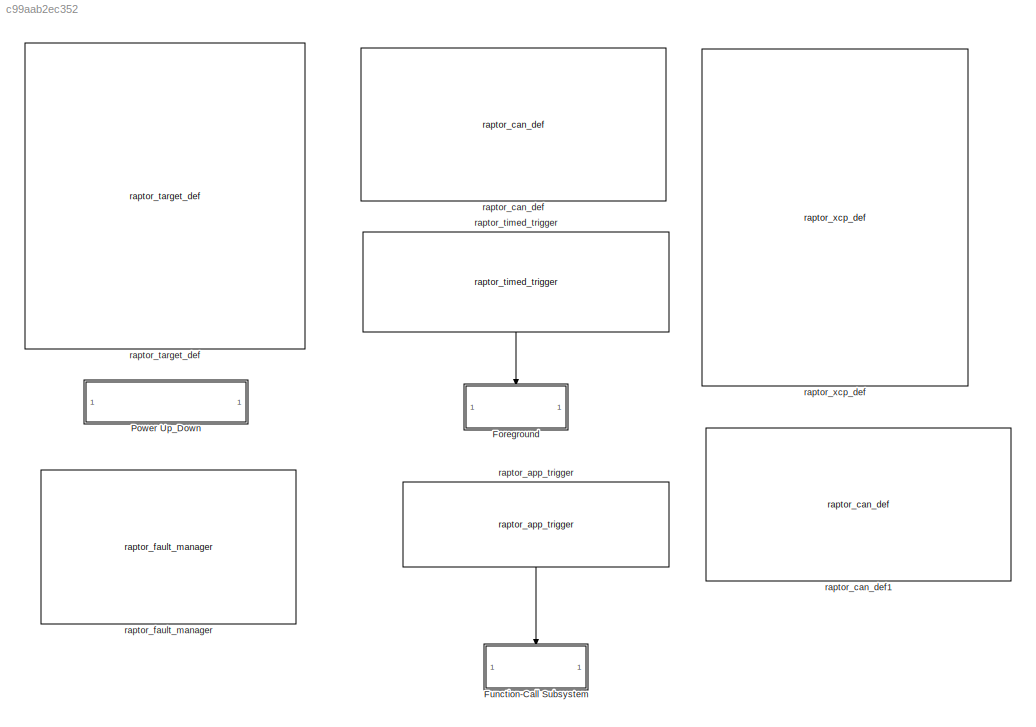
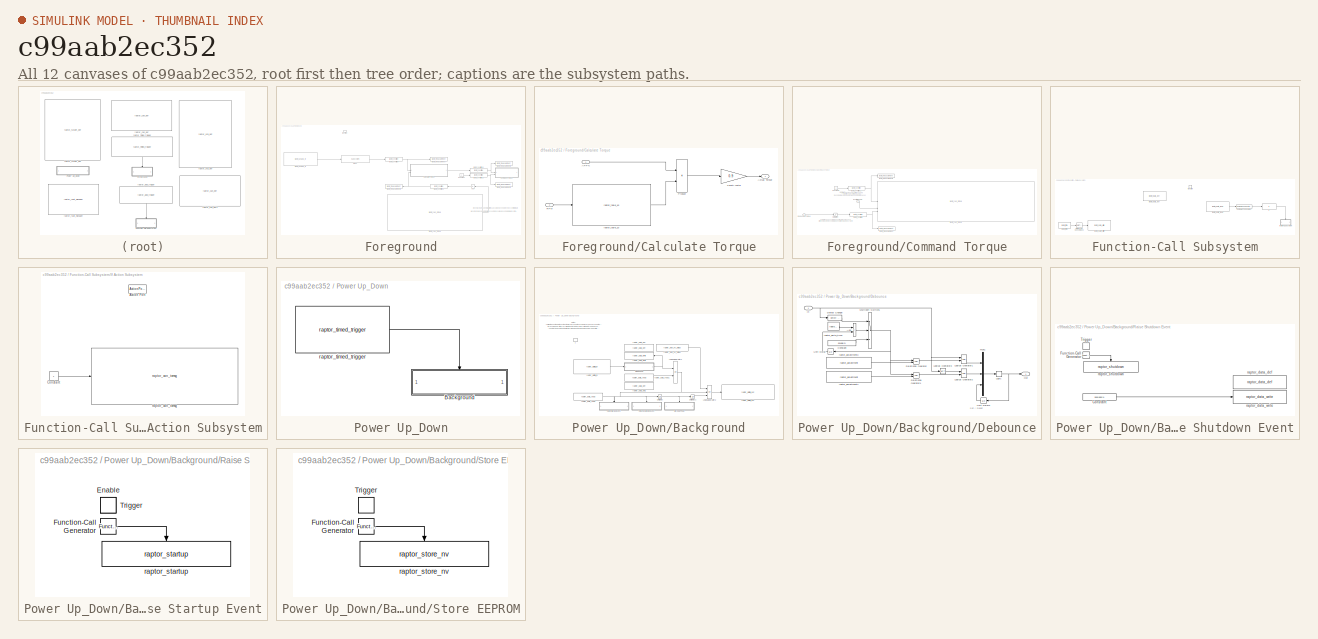
[diagram: thumbnail index - all 12 canvases of the model, root first then tree order]
MODEL slx_c99aab2ec352
KIND model
CONFIG AbsTol = auto
CONFIG EnableMultiTasking = on
CONFIG FixedStep = 0.005
CONFIG InitFcn = try, model_open; catch, end
CONFIG MaxStep = auto
CONFIG MinStep = auto
CONFIG PreLoadFcn = try, model_open; catch, disp('Error occurred while executing model pre-load callback: model_open.m'); disp('Please assure that the MATLAB working directory is set to the model directory before opening.'); end
CONFIG RelTol = 1e-3
CONFIG SampleTimeConstraint = Unconstrained
CONFIG SolverName = FixedStepDiscrete
CONFIG StartTime = 0.0
CONFIG StopTime = 2
BLOCK [SubSystem] Foreground
  RTWSystemCode = Nonreusable function
  TreatAsAtomicUnit = on
BLOCK [Abs] Foreground/Abs
  NameLocation = top
  SaturateOnIntegerOverflow = off
BLOCK [SubSystem] Foreground/Calculate Torque
BLOCK [Inport] Foreground/Calculate Torque/APP%
BLOCK [Outport] Foreground/Calculate Torque/Actual Torque
BLOCK [Product] Foreground/Calculate Torque/Product
BLOCK [Inport] Foreground/Calculate Torque/RPM
  Port = 2
BLOCK [Gain] Foreground/Calculate Torque/Safety factor
  Gain = 0.9
BLOCK [Reference] Foreground/Calculate Torque/raptor_table_1d  REF=Raptor_lib/Table Lookup/raptor_table_1d
  SourceBlock = Raptor_lib/Table Lookup/raptor_table_1d
  SourceProductName = Raptor
  SourceType = Table 1d
BLOCK [SubSystem] Foreground/Command Torque
BLOCK [Constant] Foreground/Command Torque/Constant1
  Value = 0
BLOCK [Inport] Foreground/Command Torque/Inverter Enable
  Port = 2
BLOCK [Inport] Foreground/Command Torque/Requested Torque
BLOCK [Saturate] Foreground/Command Torque/Saturation
  LowerLimit = 0
  UpperLimit = 3276
BLOCK [Reference] Foreground/Command Torque/raptor_can_txmsg  REF=Raptor_lib/CAN/raptor_can_txmsg
  SourceBlock = Raptor_lib/CAN/raptor_can_txmsg
  SourceProductName = Raptor
  SourceType = CAN Send Message
BLOCK [Reference] Foreground/Command Torque/raptor_measurement  REF=Raptor_lib/Data Storage/raptor_measurement
  SourceBlock = Raptor_lib/Data Storage/raptor_measurement
  SourceProductName = Raptor
  SourceType = Measurement
BLOCK [Reference] Foreground/Command Torque/raptor_measurement1  REF=Raptor_lib/Data Storage/raptor_measurement
  SourceBlock = Raptor_lib/Data Storage/raptor_measurement
  SourceProductName = Raptor
  SourceType = Measurement
BLOCK [Reference] Foreground/Command Torque/raptor_override  REF=Raptor_lib/Data Storage/raptor_override
  SourceBlock = Raptor_lib/Data Storage/raptor_override
  SourceProductName = Raptor
  SourceType = Override
BLOCK [Reference] Foreground/Command Torque/raptor_override1  REF=Raptor_lib/Data Storage/raptor_override
  SourceBlock = Raptor_lib/Data Storage/raptor_override
  SourceProductName = Raptor
  SourceType = Override
BLOCK [Constant] Foreground/Constant
BLOCK [Reference] Foreground/POT1  REF=Blocks_Library/Subsystem
  SourceBlock = Blocks_Library/Subsystem
BLOCK [TriggerPort] Foreground/function
  StatesWhenEnabling = held
  TriggerType = function-call
  VariantControl = (inherit)
BLOCK [Reference] Foreground/raptor_analog_in  REF=Raptor_lib/Input & Output/raptor_analog_in
  SourceBlock = Raptor_lib/Input & Output/raptor_analog_in
  SourceProductName = Raptor
  SourceType = Analog Input
BLOCK [Reference] Foreground/raptor_can_rxmsg  REF=Raptor_lib/CAN/raptor_can_rxmsg
  SourceBlock = Raptor_lib/CAN/raptor_can_rxmsg
  SourceProductName = Raptor
  SourceType = CAN Receive Message
BLOCK [Reference] Foreground/raptor_measurement  REF=Raptor_lib/Data Storage/raptor_measurement
  SourceBlock = Raptor_lib/Data Storage/raptor_measurement
  SourceProductName = Raptor
  SourceType = Measurement
BLOCK [Reference] Foreground/raptor_measurement1  REF=Raptor_lib/Data Storage/raptor_measurement
  NameLocation = top
  SourceBlock = Raptor_lib/Data Storage/raptor_measurement
  SourceProductName = Raptor
  SourceType = Measurement
BLOCK [Reference] Foreground/raptor_measurement2  REF=Raptor_lib/Data Storage/raptor_measurement
  SourceBlock = Raptor_lib/Data Storage/raptor_measurement
  SourceProductName = Raptor
  SourceType = Measurement
BLOCK [Reference] Foreground/raptor_measurement3  REF=Raptor_lib/Data Storage/raptor_measurement
  SourceBlock = Raptor_lib/Data Storage/raptor_measurement
  SourceProductName = Raptor
  SourceType = Measurement
BLOCK [Reference] Foreground/raptor_override  REF=Raptor_lib/Data Storage/raptor_override
  SourceBlock = Raptor_lib/Data Storage/raptor_override
  SourceProductName = Raptor
  SourceType = Override
BLOCK [Reference] Foreground/raptor_override1  REF=Raptor_lib/Data Storage/raptor_override
  NameLocation = top
  SourceBlock = Raptor_lib/Data Storage/raptor_override
  SourceProductName = Raptor
  SourceType = Override
BLOCK [Reference] Foreground/raptor_override2  REF=Raptor_lib/Data Storage/raptor_override
  SourceBlock = Raptor_lib/Data Storage/raptor_override
  SourceProductName = Raptor
  SourceType = Override
BLOCK [Reference] Foreground/raptor_override3  REF=Raptor_lib/Data Storage/raptor_override
  SourceBlock = Raptor_lib/Data Storage/raptor_override
  SourceProductName = Raptor
  SourceType = Override
BLOCK [SubSystem] Function-Call Subsystem
  TreatAsAtomicUnit = on
BLOCK [Reference] Function-Call Subsystem/Compare To Constant  REF=simulink/Logic and Bit
Operations/Compare
To Constant
  SourceBlock = simulink/Logic and Bit\nOperations/Compare\nTo Constant
  SourceType = Compare To Constant
BLOCK [DataTypeConversion] Function-Call Subsystem/Data Type Conversion3
  OutDataTypeStr = double
  RndMeth = Floor
  SaturateOnIntegerOverflow = off
BLOCK [If] Function-Call Subsystem/If
  IfExpression = u1 == 1
  ShowElse = off
BLOCK [SubSystem] Function-Call Subsystem/If Action Subsystem
  TreatAsAtomicUnit = on
BLOCK [ActionPort] Function-Call Subsystem/If Action Subsystem/Action Port
  ActionPortLabel = if(u1 == 1)
BLOCK [Constant] Function-Call Subsystem/If Action Subsystem/Constant
BLOCK [Reference] Function-Call Subsystem/If Action Subsystem/raptor_can_txmsg  REF=Raptor_lib/CAN/raptor_can_txmsg
  SourceBlock = Raptor_lib/CAN/raptor_can_txmsg
  SourceProductName = Raptor
  SourceType = CAN Send Message
BLOCK [TriggerPort] Function-Call Subsystem/function
  StatesWhenEnabling = held
  TriggerType = function-call
  VariantControl = (inherit)
BLOCK [Reference] Function-Call Subsystem/raptor_data_def  REF=Raptor_lib/Data Storage/raptor_data_def
  SourceBlock = Raptor_lib/Data Storage/raptor_data_def
  SourceProductName = Raptor
  SourceType = Data Store Definition Block
BLOCK [Reference] Function-Call Subsystem/raptor_data_read  REF=Raptor_lib/Data Storage/raptor_data_read
  SourceBlock = Raptor_lib/Data Storage/raptor_data_read
  SourceProductName = Raptor
  SourceType = Data Read Block
BLOCK [Reference] Function-Call Subsystem/raptor_data_write  REF=Raptor_lib/Data Storage/raptor_data_write
  SourceBlock = Raptor_lib/Data Storage/raptor_data_write
  SourceProductName = Raptor
  SourceType = Data Write Block
BLOCK [Reference] Function-Call Subsystem/raptor_time  REF=Raptor_lib/Triggers/raptor_time
  SourceBlock = Raptor_lib/Triggers/raptor_time
  SourceProductName = Raptor
  SourceType = Time
BLOCK [SubSystem] Power Up_Down
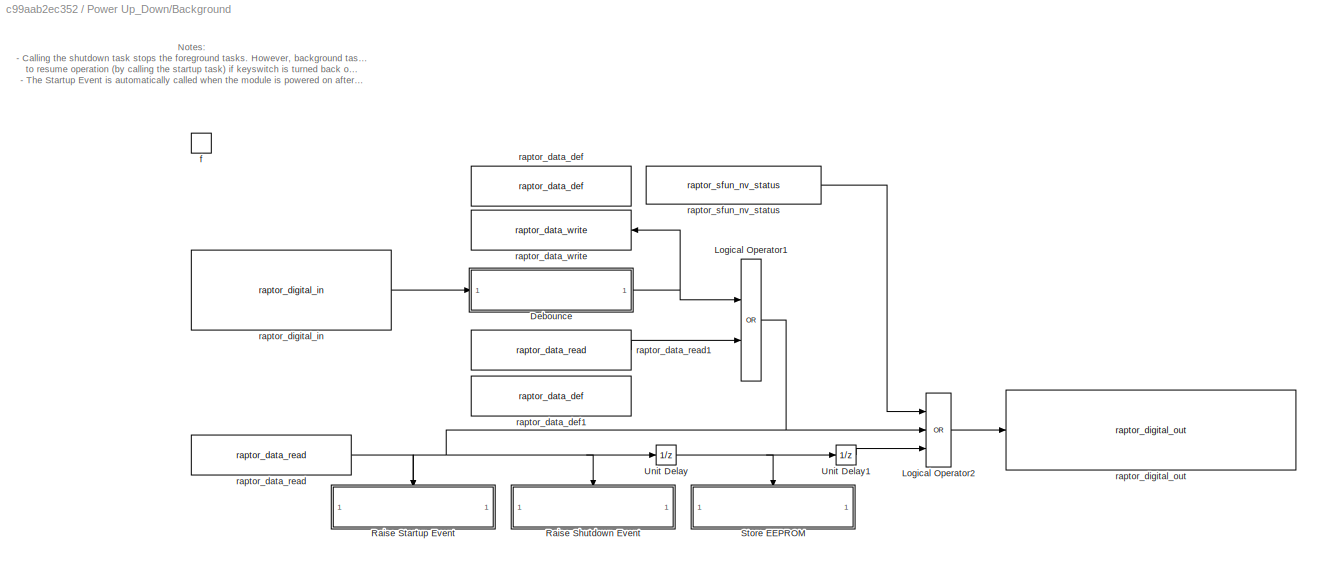
BLOCK [SubSystem] Power Up_Down/Background
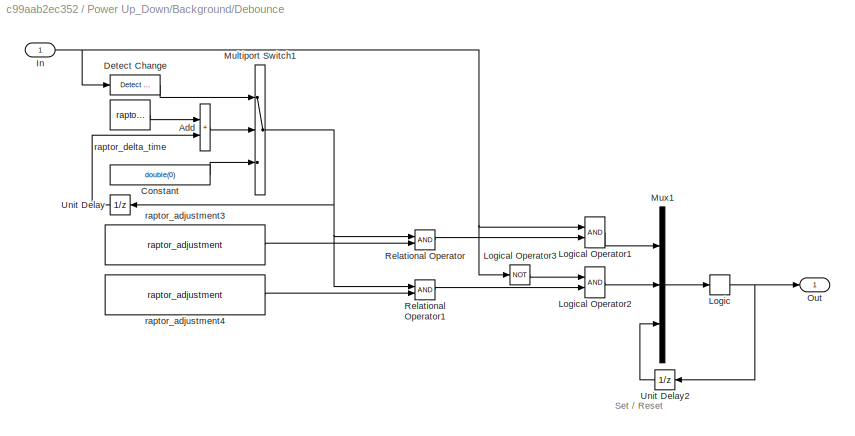
BLOCK [SubSystem] Power Up_Down/Background/Debounce
BLOCK [Sum] Power Up_Down/Background/Debounce/Add
  IconShape = rectangular
BLOCK [Constant] Power Up_Down/Background/Debounce/Constant
  Value = double(0)
BLOCK [Reference] Power Up_Down/Background/Debounce/Detect Change  REF=simulink/Logic and Bit
Operations/Detect
Change
  SourceBlock = simulink/Logic and Bit\nOperations/Detect\nChange
  SourceType = Detect Change
BLOCK [Inport] Power Up_Down/Background/Debounce/In
BLOCK [CombinatorialLogic] Power Up_Down/Background/Debounce/Logic
  TruthTable = [0;1;0;0;1;1;0;0]
BLOCK [Logic] Power Up_Down/Background/Debounce/Logical Operator1
  AllPortsSameDT = off
  OutDataTypeStr = boolean
BLOCK [Logic] Power Up_Down/Background/Debounce/Logical Operator2
  AllPortsSameDT = off
  OutDataTypeStr = boolean
BLOCK [Logic] Power Up_Down/Background/Debounce/Logical Operator3
  AllPortsSameDT = off
  Inputs = 1
  Operator = NOT
  OutDataTypeStr = boolean
BLOCK [MultiPortSwitch] Power Up_Down/Background/Debounce/Multiport Switch1
  DataPortOrder = Zero-based contiguous
  InputSameDT = off
  Inputs = 2
  SaturateOnIntegerOverflow = off
  zeroidx = on
BLOCK [Mux] Power Up_Down/Background/Debounce/Mux1
  DisplayOption = bar
  Inputs = 3
BLOCK [Outport] Power Up_Down/Background/Debounce/Out
  VectorParamsAs1DForOutWhenUnconnected = off
BLOCK [RelationalOperator] Power Up_Down/Background/Debounce/Relational Operator
  InputSameDT = off
  OutDataTypeStr = boolean
BLOCK [RelationalOperator] Power Up_Down/Background/Debounce/Relational Operator1
  InputSameDT = off
  OutDataTypeStr = boolean
BLOCK [UnitDelay] Power Up_Down/Background/Debounce/Unit Delay
  HasFrameUpgradeWarning = on
  SampleTime = -1
BLOCK [UnitDelay] Power Up_Down/Background/Debounce/Unit Delay2
  HasFrameUpgradeWarning = on
  InitialCondition = 1
  SampleTime = -1
BLOCK [Reference] Power Up_Down/Background/Debounce/raptor_adjustment3  REF=Raptor_lib/Data Storage/raptor_adjustment
  SourceBlock = Raptor_lib/Data Storage/raptor_adjustment
  SourceProductName = Raptor
  SourceType = Adjustment
BLOCK [Reference] Power Up_Down/Background/Debounce/raptor_adjustment4  REF=Raptor_lib/Data Storage/raptor_adjustment
  SourceBlock = Raptor_lib/Data Storage/raptor_adjustment
  SourceProductName = Raptor
  SourceType = Adjustment
BLOCK [Reference] Power Up_Down/Background/Debounce/raptor_delta_time  REF=Raptor_lib/Triggers/raptor_delta_time
  SourceBlock = Raptor_lib/Triggers/raptor_delta_time
  SourceProductName = Raptor
  SourceType = Delta Time
BLOCK [Logic] Power Up_Down/Background/Logical Operator1
  Operator = OR
  OutDataTypeStr = boolean
BLOCK [Logic] Power Up_Down/Background/Logical Operator2
  Inputs = 3
  Operator = OR
  OutDataTypeStr = boolean
BLOCK [SubSystem] Power Up_Down/Background/Raise Shutdown Event
  TreatAsAtomicUnit = on
BLOCK [Constant] Power Up_Down/Background/Raise Shutdown Event/Constant
  Value = boolean(1)
BLOCK [Reference] Power Up_Down/Background/Raise Shutdown Event/Function-Call Generator  REF=simulink/Ports &
Subsystems/Function-Call
Generator
  SourceBlock = simulink/Ports &\nSubsystems/Function-Call\nGenerator
  SourceType = Function-Call Generator
BLOCK [TriggerPort] Power Up_Down/Background/Raise Shutdown Event/Trigger
  StatesWhenEnabling = held
  TriggerType = falling
  VariantControl = Variant
BLOCK [Reference] Power Up_Down/Background/Raise Shutdown Event/raptor_data_def  REF=Raptor_lib/Data Storage/raptor_data_def
  SourceBlock = Raptor_lib/Data Storage/raptor_data_def
  SourceProductName = Raptor
  SourceType = Data Store Definition Block
BLOCK [Reference] Power Up_Down/Background/Raise Shutdown Event/raptor_data_write  REF=Raptor_lib/Data Storage/raptor_data_write
  SourceBlock = Raptor_lib/Data Storage/raptor_data_write
  SourceProductName = Raptor
  SourceType = Data Write Block
BLOCK [Reference] Power Up_Down/Background/Raise Shutdown Event/raptor_shutdown  REF=Raptor_lib/Triggers/raptor_shutdown
  SourceBlock = Raptor_lib/Triggers/raptor_shutdown
  SourceProductName = Raptor
  SourceType = Shutdown
BLOCK [SubSystem] Power Up_Down/Background/Raise Startup Event
  TreatAsAtomicUnit = on
BLOCK [EnablePort] Power Up_Down/Background/Raise Startup Event/Enable
BLOCK [Reference] Power Up_Down/Background/Raise Startup Event/Function-Call Generator  REF=simulink/Ports &
Subsystems/Function-Call
Generator
  SourceBlock = simulink/Ports &\nSubsystems/Function-Call\nGenerator
  SourceType = Function-Call Generator
BLOCK [TriggerPort] Power Up_Down/Background/Raise Startup Event/Trigger
  StatesWhenEnabling = held
  VariantControl = Variant
BLOCK [Reference] Power Up_Down/Background/Raise Startup Event/raptor_startup  REF=Raptor_lib/Triggers/raptor_startup
  SourceBlock = Raptor_lib/Triggers/raptor_startup
  SourceProductName = Raptor
  SourceType = Startup
BLOCK [SubSystem] Power Up_Down/Background/Store EEPROM
  TreatAsAtomicUnit = on
BLOCK [Reference] Power Up_Down/Background/Store EEPROM/Function-Call Generator  REF=simulink/Ports &
Subsystems/Function-Call
Generator
  SourceBlock = simulink/Ports &\nSubsystems/Function-Call\nGenerator
  SourceType = Function-Call Generator
BLOCK [TriggerPort] Power Up_Down/Background/Store EEPROM/Trigger
  StatesWhenEnabling = held
  TriggerType = falling
  VariantControl = Variant
BLOCK [Reference] Power Up_Down/Background/Store EEPROM/raptor_store_nv  REF=Raptor_lib/Data Storage/raptor_store_nv
  SourceBlock = Raptor_lib/Data Storage/raptor_store_nv
  SourceProductName = Raptor
  SourceType = Store NonVolatile
BLOCK [UnitDelay] Power Up_Down/Background/Unit Delay
  HasFrameUpgradeWarning = on
  SampleTime = -1
BLOCK [UnitDelay] Power Up_Down/Background/Unit Delay1
  HasFrameUpgradeWarning = on
  SampleTime = -1
BLOCK [TriggerPort] Power Up_Down/Background/f
  TriggerType = function-call
  VariantControl = Variant
  ZeroCross = off
BLOCK [Reference] Power Up_Down/Background/raptor_data_def  REF=Raptor_lib/Data Storage/raptor_data_def
  SourceBlock = Raptor_lib/Data Storage/raptor_data_def
  SourceProductName = Raptor
  SourceType = Data Store Definition Block
BLOCK [Reference] Power Up_Down/Background/raptor_data_def1  REF=Raptor_lib/Data Storage/raptor_data_def
  SourceBlock = Raptor_lib/Data Storage/raptor_data_def
  SourceProductName = Raptor
  SourceType = Data Store Definition Block
BLOCK [Reference] Power Up_Down/Background/raptor_data_read  REF=Raptor_lib/Data Storage/raptor_data_read
  SourceBlock = Raptor_lib/Data Storage/raptor_data_read
  SourceProductName = Raptor
  SourceType = Data Read Block
BLOCK [Reference] Power Up_Down/Background/raptor_data_read1  REF=Raptor_lib/Data Storage/raptor_data_read
  SourceBlock = Raptor_lib/Data Storage/raptor_data_read
  SourceProductName = Raptor
  SourceType = Data Read Block
BLOCK [Reference] Power Up_Down/Background/raptor_data_write  REF=Raptor_lib/Data Storage/raptor_data_write
  SourceBlock = Raptor_lib/Data Storage/raptor_data_write
  SourceProductName = Raptor
  SourceType = Data Write Block
BLOCK [Reference] Power Up_Down/Background/raptor_digital_in  REF=Raptor_lib/Input & Output/raptor_digital_in
  SourceBlock = Raptor_lib/Input & Output/raptor_digital_in
  SourceProductName = Raptor
  SourceType = Digital Input Block
BLOCK [Reference] Power Up_Down/Background/raptor_digital_out  REF=Raptor_lib/Input & Output/raptor_digital_out
  SourceBlock = Raptor_lib/Input & Output/raptor_digital_out
  SourceProductName = Raptor
  SourceType = Digital Output
BLOCK [Reference] Power Up_Down/Background/raptor_sfun_nv_status  REF=Raptor_lib/Data Storage/raptor_sfun_nv_status
  SourceBlock = Raptor_lib/Data Storage/raptor_sfun_nv_status
  SourceProductName = Raptor
  SourceType = Nonvolatile Status
BLOCK [Reference] Power Up_Down/raptor_timed_trigger  REF=Raptor_lib/Triggers/raptor_timed_trigger
  SourceBlock = Raptor_lib/Triggers/raptor_timed_trigger
  SourceProductName = Raptor
  SourceType = Timed Trigger Block
BLOCK [Reference] raptor_app_trigger  REF=Raptor_lib/Triggers/raptor_app_trigger
  NameLocation = left
  SourceBlock = Raptor_lib/Triggers/raptor_app_trigger
  SourceProductName = Raptor
  SourceType = App Trigger Block
BLOCK [Reference] raptor_can_def  REF=Raptor_lib/CAN/raptor_can_def
  SourceBlock = Raptor_lib/CAN/raptor_can_def
  SourceProductName = Raptor
  SourceType = CAN Definition
BLOCK [Reference] raptor_can_def1  REF=Raptor_lib/CAN/raptor_can_def
  SourceBlock = Raptor_lib/CAN/raptor_can_def
  SourceProductName = Raptor
  SourceType = CAN Definition
BLOCK [Reference] raptor_fault_manager  REF=Raptor_lib/Faults/raptor_fault_manager
  SourceBlock = Raptor_lib/Faults/raptor_fault_manager
  SourceProductName = Raptor
  SourceType = Fault Manager
BLOCK [Reference] raptor_target_def  REF=Raptor_lib/Configuration/raptor_target_def
  SourceBlock = Raptor_lib/Configuration/raptor_target_def
  SourceProductName = Raptor
  SourceType = Target Definition Block
BLOCK [Reference] raptor_timed_trigger  REF=Raptor_lib/Triggers/raptor_timed_trigger
  NameLocation = left
  SourceBlock = Raptor_lib/Triggers/raptor_timed_trigger
  SourceProductName = Raptor
  SourceType = Timed Trigger Block
BLOCK [Reference] raptor_xcp_def  REF=Raptor_lib/Configuration/raptor_xcp_def
  SourceBlock = Raptor_lib/Configuration/raptor_xcp_def
  SourceProductName = Raptor
  SourceType = XCP Definition Block
ANNOTATION Foreground: When facing resolver stator wires, clockwise is vehicle reverse control forward
ANNOTATION Foreground: When facing resolver stator wires, counterclockwise is vehicle forward, control reverse
ANNOTATION Foreground/Command Torque: 0 for reverse when Inverter is enabled 0 for off when inverter is disabled
ANNOTATION Foreground/Command Torque: 1 is forward
ANNOTATION Foreground/Command Torque: Running in reverse due to swapped motor phases
ANNOTATION Foreground/Command Torque: Saturation does not allow negative torque request- will need to be removed for a regenerative braking system
ANNOTATION Power Up_Down/Background: Notes : - Calling the shutdown task stops the foreground tasks. However, background tasks continue, so the reading of key switch must be in this subsystem to allow the module to resume operation (by calling the startup task) if keyswitch is turned back on before the module actually turns off. - The Startup Event is automatically called when the module is powered on after being completely off. The ...<+96ch>
ANNOTATION Power Up_Down/Background/Debounce: Set / Reset
LINE Foreground/Abs:1 -> Foreground/raptor_override1:1
LINE Foreground/Calculate Torque/APP%:1 -> Foreground/Calculate Torque/Product:1
LINE Foreground/Calculate Torque/Product:1 -> Foreground/Calculate Torque/Safety factor:1
LINE Foreground/Calculate Torque/RPM:1 -> Foreground/Calculate Torque/raptor_table_1d:1
LINE Foreground/Calculate Torque/Safety factor:1 -> Foreground/Calculate Torque/Actual Torque:1
LINE Foreground/Calculate Torque/raptor_table_1d:1 -> Foreground/Calculate Torque/Product:2
LINE Foreground/Calculate Torque:1 -> Foreground/raptor_override3:1
LINE Foreground/Command Torque/Constant1:1 -> Foreground/Command Torque/raptor_override1:1
LINE Foreground/Command Torque/Inverter Enable:1 -> Foreground/Command Torque/raptor_can_txmsg:2
LINE Foreground/Command Torque/Requested Torque:1 -> Foreground/Command Torque/Saturation:1
LINE Foreground/Command Torque/Saturation:1 -> Foreground/Command Torque/raptor_override:1
NET Foreground/Command Torque/raptor_override1:1 -> Foreground/Command Torque/raptor_can_txmsg:1, Foreground/Command Torque/raptor_measurement1:1
NET Foreground/Command Torque/raptor_override:1 -> Foreground/Command Torque/raptor_can_txmsg:3, Foreground/Command Torque/raptor_measurement:1
LINE Foreground/Constant:1 -> Foreground/raptor_override2:1
LINE Foreground/POT1:1 -> Foreground/raptor_override:1
LINE Foreground/raptor_analog_in:1 -> Foreground/POT1:1
LINE Foreground/raptor_can_rxmsg:1 -> Foreground/Abs:1
NET Foreground/raptor_override1:1 -> Foreground/Calculate Torque:2, Foreground/raptor_measurement1:1
NET Foreground/raptor_override2:1 -> Foreground/Command Torque:2, Foreground/raptor_measurement2:1
NET Foreground/raptor_override3:1 -> Foreground/Command Torque:1, Foreground/raptor_measurement3:1
NET Foreground/raptor_override:1 -> Foreground/Calculate Torque:1, Foreground/raptor_measurement:1
LINE Function-Call Subsystem/Compare To Constant:1 -> Function-Call Subsystem/If:1
LINE Function-Call Subsystem/Data Type Conversion3:1 -> Function-Call Subsystem/raptor_data_write:1
LINE Function-Call Subsystem/If Action Subsystem/Constant:1 -> Function-Call Subsystem/If Action Subsystem/raptor_can_txmsg:1
LINE Function-Call Subsystem/If:1 -> Function-Call Subsystem/If Action Subsystem:ifaction
LINE Function-Call Subsystem/raptor_data_read:1 -> Function-Call Subsystem/Compare To Constant:1
LINE Function-Call Subsystem/raptor_time:1 -> Function-Call Subsystem/Data Type Conversion3:1
LINE Power Up_Down/Background/Debounce/Add:1 -> Power Up_Down/Background/Debounce/Multiport Switch1:2
LINE Power Up_Down/Background/Debounce/Constant:1 -> Power Up_Down/Background/Debounce/Multiport Switch1:3
LINE Power Up_Down/Background/Debounce/Detect Change:1 -> Power Up_Down/Background/Debounce/Multiport Switch1:1
NET Power Up_Down/Background/Debounce/In:1 -> Power Up_Down/Background/Debounce/Detect Change:1, Power Up_Down/Background/Debounce/Logical Operator1:1, Power Up_Down/Background/Debounce/Logical Operator3:1
NET Power Up_Down/Background/Debounce/Logic:1 -> Power Up_Down/Background/Debounce/Out:1, Power Up_Down/Background/Debounce/Unit Delay2:1
LINE Power Up_Down/Background/Debounce/Logical Operator1:1 -> Power Up_Down/Background/Debounce/Mux1:1
LINE Power Up_Down/Background/Debounce/Logical Operator2:1 -> Power Up_Down/Background/Debounce/Mux1:2
LINE Power Up_Down/Background/Debounce/Logical Operator3:1 -> Power Up_Down/Background/Debounce/Logical Operator2:1
NET Power Up_Down/Background/Debounce/Multiport Switch1:1 -> Power Up_Down/Background/Debounce/Relational Operator1:1, Power Up_Down/Background/Debounce/Relational Operator:1, Power Up_Down/Background/Debounce/Unit Delay:1
LINE Power Up_Down/Background/Debounce/Mux1:1 -> Power Up_Down/Background/Debounce/Logic:1
LINE Power Up_Down/Background/Debounce/Relational Operator1:1 -> Power Up_Down/Background/Debounce/Logical Operator2:2
LINE Power Up_Down/Background/Debounce/Relational Operator:1 -> Power Up_Down/Background/Debounce/Logical Operator1:2
LINE Power Up_Down/Background/Debounce/Unit Delay2:1 -> Power Up_Down/Background/Debounce/Mux1:3
LINE Power Up_Down/Background/Debounce/Unit Delay:1 -> Power Up_Down/Background/Debounce/Add:2
LINE Power Up_Down/Background/Debounce/raptor_adjustment3:1 -> Power Up_Down/Background/Debounce/Relational Operator:2
LINE Power Up_Down/Background/Debounce/raptor_adjustment4:1 -> Power Up_Down/Background/Debounce/Relational Operator1:2
LINE Power Up_Down/Background/Debounce/raptor_delta_time:1 -> Power Up_Down/Background/Debounce/Add:1
NET Power Up_Down/Background/Debounce:1 -> Power Up_Down/Background/Logical Operator1:1, Power Up_Down/Background/raptor_data_write:1
NET Power Up_Down/Background/Logical Operator1:1 -> Power Up_Down/Background/Logical Operator2:2, Power Up_Down/Background/Raise Shutdown Event:trigger, Power Up_Down/Background/Raise Startup Event:trigger, Power Up_Down/Background/Unit Delay:1
LINE Power Up_Down/Background/Logical Operator2:1 -> Power Up_Down/Background/raptor_digital_out:1
LINE Power Up_Down/Background/Raise Shutdown Event/Constant:1 -> Power Up_Down/Background/Raise Shutdown Event/raptor_data_write:1
LINE Power Up_Down/Background/Raise Shutdown Event/Function-Call Generator:1 -> Power Up_Down/Background/Raise Shutdown Event/raptor_shutdown:trigger
LINE Power Up_Down/Background/Raise Startup Event/Function-Call Generator:1 -> Power Up_Down/Background/Raise Startup Event/raptor_startup:trigger
LINE Power Up_Down/Background/Store EEPROM/Function-Call Generator:1 -> Power Up_Down/Background/Store EEPROM/raptor_store_nv:trigger
LINE Power Up_Down/Background/Unit Delay1:1 -> Power Up_Down/Background/Logical Operator2:3
NET Power Up_Down/Background/Unit Delay:1 -> Power Up_Down/Background/Store EEPROM:trigger, Power Up_Down/Background/Unit Delay1:1
LINE Power Up_Down/Background/raptor_data_read1:1 -> Power Up_Down/Background/Logical Operator1:2
LINE Power Up_Down/Background/raptor_data_read:1 -> Power Up_Down/Background/Raise Startup Event:enable
LINE Power Up_Down/Background/raptor_digital_in:1 -> Power Up_Down/Background/Debounce:1
LINE Power Up_Down/Background/raptor_sfun_nv_status:1 -> Power Up_Down/Background/Logical Operator2:1
LINE Power Up_Down/raptor_timed_trigger:1 -> Power Up_Down/Background:trigger
LINE raptor_app_trigger:1 -> Function-Call Subsystem:trigger
LINE raptor_timed_trigger:1 -> Foreground:trigger
note: NET lines group one-source signal fan-out (src -> all destinations, sorted); 1:1 wires keep LINE
